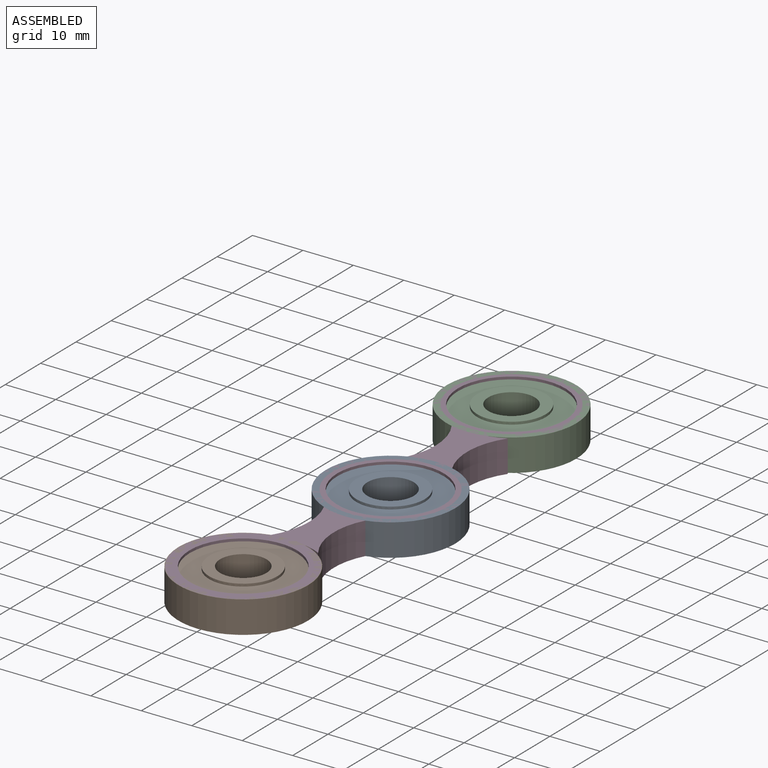
[diagram: assembled view]
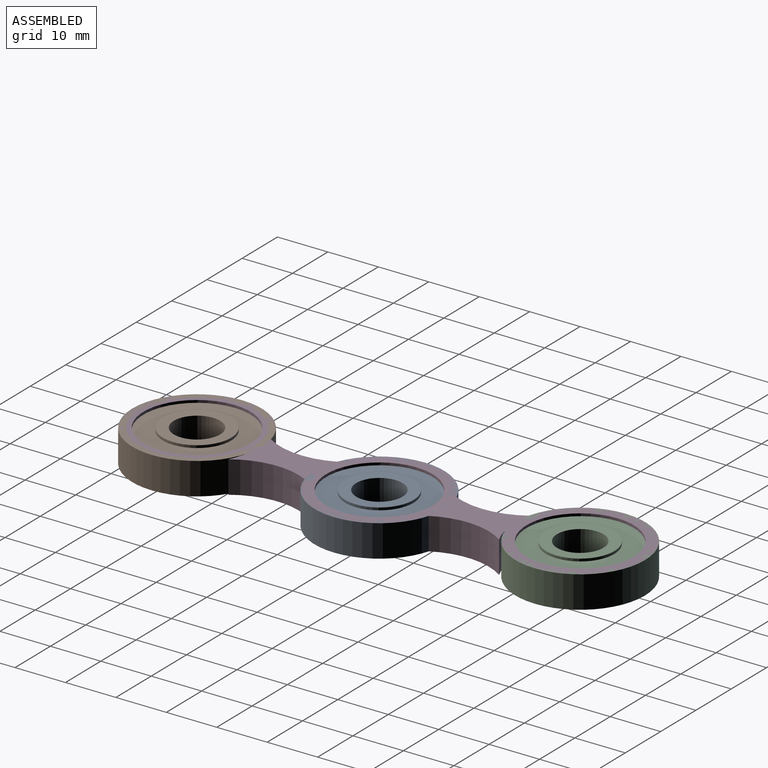
[diagram: assembled view, second angle]
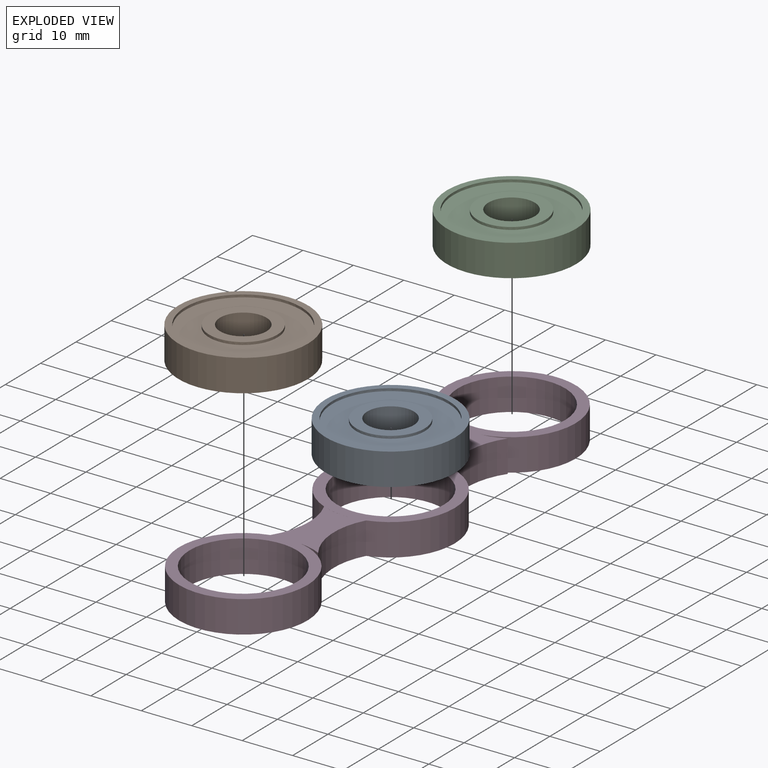
[diagram: exploded view]
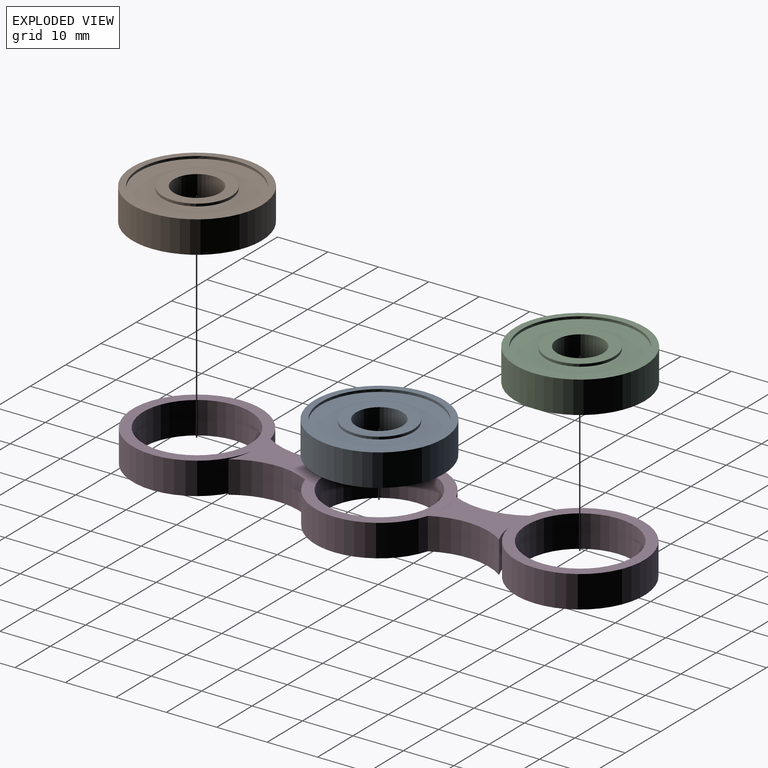
[diagram: exploded view, second angle]
ASSEMBLY  parts=4 mates=3
PART A: 8 faces, bbox 25.7x6.4x25.7 mm
  f0: cylinder r=11.55mm len=23.09mm, axis (0,1,0), area 36.9mm2, adj f2,f4
  f1: cylinder r=12.83mm len=25.66mm, axis (0,1,0), area 512mm2, adj f2,f3
  f2: plane 25.66x25.66mm, normal (0,-1,0), area 98.5mm2, adj f0,f1
  f3: plane 25.66x25.66mm, normal (0,1,0), area 450.9mm2, adj f1,f5
  f4: plane 23.09x23.09mm, normal (0,-1,0), area 274.4mm2, adj f0,f6
  f5: cylinder r=4.6mm len=9.2mm, axis (0,1,0), area 183.4mm2, adj f3,f7
  f6: cylinder r=6.78mm len=13.56mm, axis (0,1,0), area 21.6mm2, adj f4,f7
  f7: plane 13.56x13.56mm, normal (0,-1,0), area 77.9mm2, adj f5,f6
PART B: same geometry as A
PART C: same geometry as A
PART D: 19 faces, bbox 28x101.4x6.4 mm
  f0: cylinder r=12.71mm len=24.35mm, axis (0,0,-1), area 206.5mm2, adj f7,f8,f9,f15
  f1: cylinder r=12.71mm len=23.39mm, axis (0,0,-1), area 188.6mm2, adj f3,f7,f8,f13
  f2: cylinder r=12.71mm len=6.35mm, axis (0,0,-1), area 38.7mm2, adj f7,f8,f16
  f3: cylinder r=14.43mm len=13.99mm, axis (0,0,-1), area 93mm2, adj f1,f7,f8,f12
  f4: cylinder r=12.16mm len=6.35mm, axis (0,0,-1), area 29mm2, adj f7,f8,f9,f12
  f5: cylinder r=10.55mm len=21.1mm, axis (0,0,-1), area 421mm2, adj f7,f8
  f6: cylinder r=12.71mm len=6.35mm, axis (0,0,-1), area 38.7mm2, adj f7,f8,f10
  f7: plane 101.42x28.05mm, normal (0,0,1), area 639.7mm2, adj f0,f1,f2,f3,f4,f5,f6,f9
  f8: plane 101.42x28.05mm, normal (0,0,-1), area 639.7mm2, adj f0,f1,f2,f3,f4,f5,f6,f9
  f9: cylinder r=14.11mm len=14.67mm, axis (0,0,-1), area 98.1mm2, adj f0,f4,f7,f8
  f10: cylinder r=12.13mm len=6.35mm, axis (0,0,-1), area 38.8mm2, adj f6,f7,f8
  f11: cylinder r=10.63mm len=21.27mm, axis (0,0,-1), area 424.3mm2, adj f7,f8
  f12: cylinder r=12.72mm len=25.45mm, axis (0,0,-1), area 469.5mm2, adj f3,f4,f7,f8
  f13: cylinder r=14.43mm len=13.99mm, axis (0,0,-1), area 93mm2, adj f1,f7,f8,f18
  f14: cylinder r=12.16mm len=6.35mm, axis (0,0,-1), area 29mm2, adj f7,f8,f15,f18
  f15: cylinder r=14.11mm len=14.67mm, axis (0,0,-1), area 98.1mm2, adj f0,f7,f8,f14
  f16: cylinder r=12.13mm len=6.35mm, axis (0,0,-1), area 38.8mm2, adj f2,f7,f8
  f17: cylinder r=10.63mm len=21.27mm, axis (0,0,-1), area 424.3mm2, adj f7,f8
  f18: cylinder r=12.72mm len=25.45mm, axis (0,0,-1), area 469.5mm2, adj f7,f8,f13,f14
PLACE A rot(axis=(-1,0,0),90deg) t=(4.06,-0.92,-3.39)mm
PLACE B rot(axis=(-1,0,0),90deg) t=(1.45,-38.91,-3.39)mm
PLACE C rot(axis=(-1,0,0),90deg) t=(1.45,37.07,-3.39)mm
PLACE D t=(4.06,-0.92,-3.39)mm
MATE cylindrical B.f0 <-> D.f11  axis (0,0,1) through (1.45,-38.91,2.96)mm
MATE revolute C.f0 <-> D.f17  axis (0,0,-1) through (1.45,37.07,-0.22)mm
MATE slider A.f0 <-> D.f0  axis (0,0,1) through (4.06,-0.92,2.96)mm
